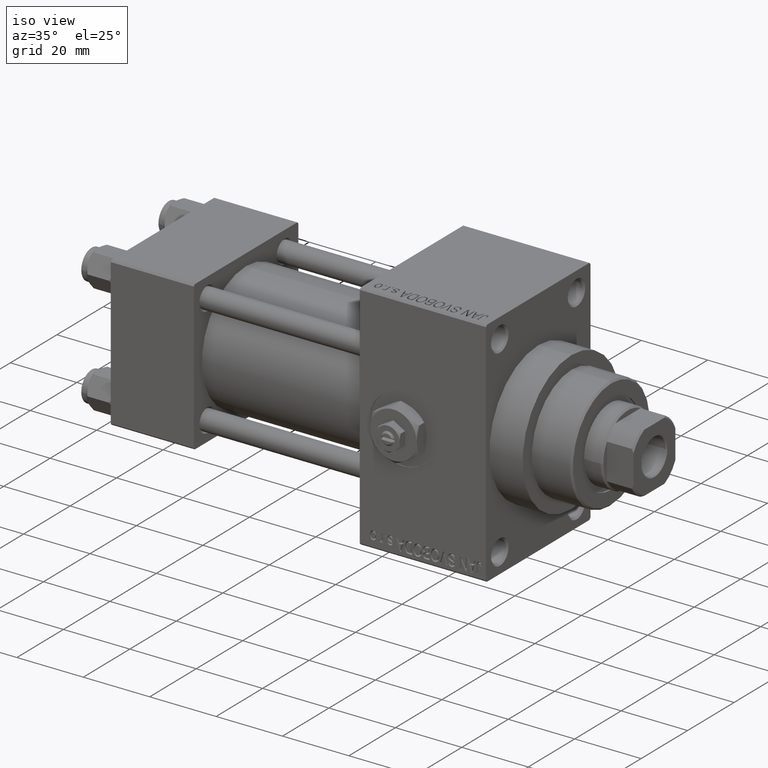
[diagram: clean part render]
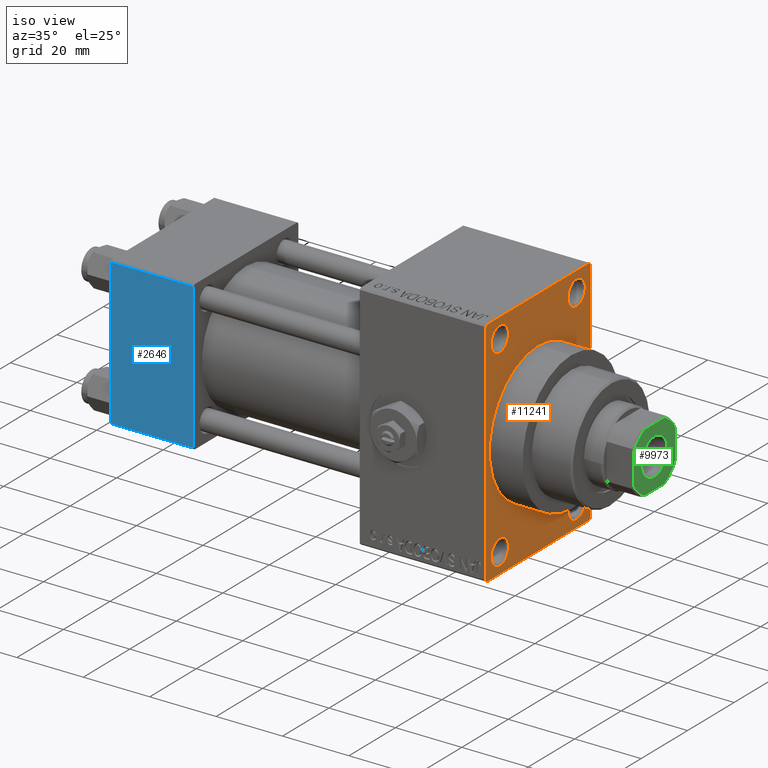
[diagram: same view with three faces highlighted in distinct colors, each labeled with its STEP entity id]
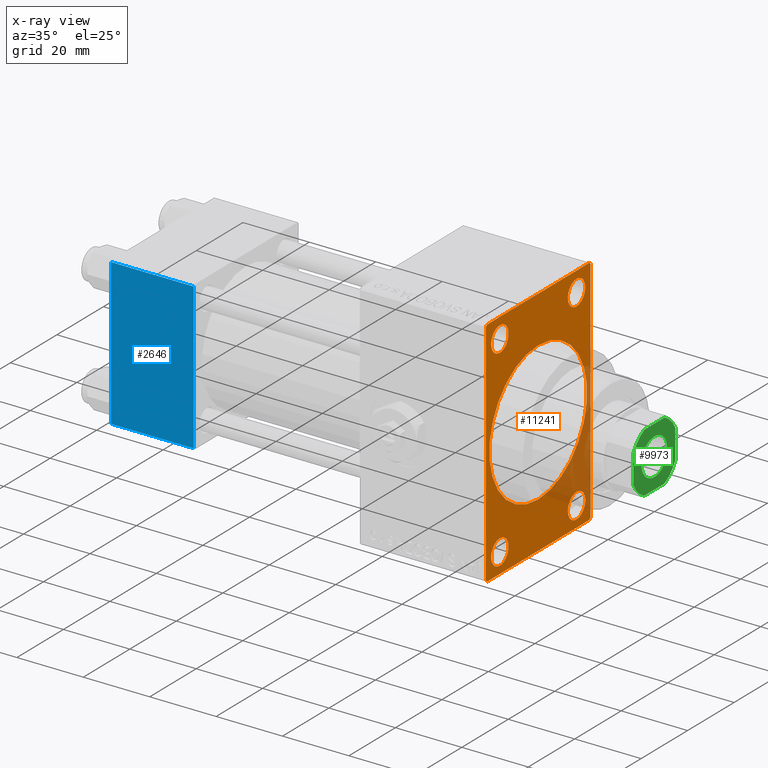
[diagram: x-ray of the same camera — body ghosted, the three highlighted faces saturated]
A machine part, iso view with three faces highlighted in distinct colors.
The next image is the same camera in x-ray (body ghosted, the three faces saturated) — at least one of them is partly hidden behind the body in this view.
Their STEP definitions:

[orange] entity #11241 — the highlighted planar face has unit normal (-1, 0, 0).
#111 = FACE_BOUND ( 'NONE', #27676, .T. ) ;
#350 = LINE ( 'NONE', #4540, #17916 ) ;
#731 = CARTESIAN_POINT ( 'NONE',  ( 113.0000000000000142, 21.99999999999999645, 35.00000000000000000 ) ) ;
#841 = CIRCLE ( 'NONE', #7157, 3.750000000000072831 ) ;
#1044 = CARTESIAN_POINT ( 'NONE',  ( 113.0000000000000142, 2.571758278209441661E-15, -21.00000000000000000 ) ) ;
#1515 = CIRCLE ( 'NONE', #22782, 3.750000000000076383 ) ;
#1830 = EDGE_CURVE ( 'NONE', #15247, #42795, #30172, .T. ) ;
#1863 = EDGE_CURVE ( 'NONE', #19307, #16703, #40389, .T. ) ;
#2009 = ORIENTED_EDGE ( 'NONE', *, *, #43191, .F. ) ;
#2532 = EDGE_LOOP ( 'NONE', ( #15069, #25843 ) ) ;
#2663 = CIRCLE ( 'NONE', #29483, 3.750000000000076383 ) ;
#2937 = EDGE_LOOP ( 'NONE', ( #11851, #37010, #37920, #43205, #41903, #37505, #27142, #4091 ) ) ;
#2986 = CARTESIAN_POINT ( 'NONE',  ( 113.0000000000000142, -16.50000000000000000, -28.99999999999999289 ) ) ;
#3069 = DIRECTION ( 'NONE',  ( 0.000000000000000000, 0.000000000000000000, 1.000000000000000000 ) ) ;
#3723 = EDGE_CURVE ( 'NONE', #18837, #29678, #25521, .T. ) ;
#3910 = DIRECTION ( 'NONE',  ( -1.000000000000000000, -0.000000000000000000, -0.000000000000000000 ) ) ;
#4055 = CIRCLE ( 'NONE', #48169, 3.750000000000069278 ) ;
#4091 = ORIENTED_EDGE ( 'NONE', *, *, #23575, .T. ) ;
#4540 = CARTESIAN_POINT ( 'NONE',  ( 113.0000000000000142, -22.50000000000000355, 35.00000000000000000 ) ) ;
#4783 = LINE ( 'NONE', #11959, #11440 ) ;
#5628 = VECTOR ( 'NONE', #10856, 1000.000000000000114 ) ;
#5907 = DIRECTION ( 'NONE',  ( 0.000000000000000000, 0.000000000000000000, -1.000000000000000000 ) ) ;
#5928 = EDGE_CURVE ( 'NONE', #39356, #47126, #4783, .T. ) ;
#6081 = AXIS2_PLACEMENT_3D ( 'NONE', #37622, #29984, #19614 ) ;
#6164 = DIRECTION ( 'NONE',  ( 0.000000000000000000, -0.7071067811865474617, 0.7071067811865474617 ) ) ;
#6750 = CARTESIAN_POINT ( 'NONE',  ( 113.0000000000000142, 16.50000000000000000, -32.75000000000007105 ) ) ;
#6920 = CARTESIAN_POINT ( 'NONE',  ( 113.0000000000000142, 16.50000000000000000, -28.99999999999999289 ) ) ;
#6928 = DIRECTION ( 'NONE',  ( 0.000000000000000000, 0.000000000000000000, 1.000000000000000000 ) ) ;
#6929 = DIRECTION ( 'NONE',  ( -1.000000000000000000, -0.000000000000000000, -0.000000000000000000 ) ) ;
#7157 = AXIS2_PLACEMENT_3D ( 'NONE', #46805, #9094, #38690 ) ;
#7222 = AXIS2_PLACEMENT_3D ( 'NONE', #44544, #10769, #14973 ) ;
#7718 = VERTEX_POINT ( 'NONE', #43502 ) ;
#7963 = CARTESIAN_POINT ( 'NONE',  ( 113.0000000000000142, -22.50000000000000355, -34.49999999999997158 ) ) ;
#8005 = FACE_BOUND ( 'NONE', #2532, .T. ) ;
#8899 = AXIS2_PLACEMENT_3D ( 'NONE', #47627, #28910, #6928 ) ;
#9094 = DIRECTION ( 'NONE',  ( -1.000000000000000000, -0.000000000000000000, -0.000000000000000000 ) ) ;
#9309 = CIRCLE ( 'NONE', #43053, 3.750000000000076383 ) ;
#9596 = DIRECTION ( 'NONE',  ( 0.000000000000000000, 0.000000000000000000, 1.000000000000000000 ) ) ;
#9903 = DIRECTION ( 'NONE',  ( -1.000000000000000000, -0.000000000000000000, -0.000000000000000000 ) ) ;
#10769 = DIRECTION ( 'NONE',  ( 1.000000000000000000, 0.000000000000000000, 0.000000000000000000 ) ) ;
#10856 = DIRECTION ( 'NONE',  ( -0.000000000000000000, 0.7071067811865474617, 0.7071067811865474617 ) ) ;
#10870 = ORIENTED_EDGE ( 'NONE', *, *, #28246, .F. ) ;
#11199 = EDGE_CURVE ( 'NONE', #47234, #39356, #350, .T. ) ;
#11241 = ADVANCED_FACE ( 'NONE', ( #8005, #22838, #12208, #34408, #111, #22596 ), #30955, .F. ) ;
#11440 = VECTOR ( 'NONE', #27005, 999.9999999999998863 ) ;
#11479 = DIRECTION ( 'NONE',  ( 0.000000000000000000, 0.000000000000000000, -1.000000000000000000 ) ) ;
#11701 = CARTESIAN_POINT ( 'NONE',  ( 113.0000000000000142, 16.50000000000000000, 25.24999999999993250 ) ) ;
#11851 = ORIENTED_EDGE ( 'NONE', *, *, #11199, .T. ) ;
#11959 = CARTESIAN_POINT ( 'NONE',  ( 113.0000000000000142, -21.99999999999998934, -35.00000000000000000 ) ) ;
#12208 = FACE_BOUND ( 'NONE', #40215, .T. ) ;
#13118 = EDGE_LOOP ( 'NONE', ( #46519, #17172 ) ) ;
#14788 = CARTESIAN_POINT ( 'NONE',  ( 113.0000000000000142, -16.50000000000000000, 32.75000000000007816 ) ) ;
#14973 = DIRECTION ( 'NONE',  ( 0.000000000000000000, 0.000000000000000000, -1.000000000000000000 ) ) ;
#15069 = ORIENTED_EDGE ( 'NONE', *, *, #27172, .T. ) ;
#15247 = VERTEX_POINT ( 'NONE', #6750 ) ;
#15593 = CARTESIAN_POINT ( 'NONE',  ( 113.0000000000000142, -16.50000000000000000, 29.00000000000000711 ) ) ;
#15700 = EDGE_CURVE ( 'NONE', #17176, #42998, #46871, .T. ) ;
#16603 = CARTESIAN_POINT ( 'NONE',  ( 113.0000000000000142, 21.99999999999999645, -35.00000000000000000 ) ) ;
#16703 = VERTEX_POINT ( 'NONE', #47849 ) ;
#17172 = ORIENTED_EDGE ( 'NONE', *, *, #3723, .T. ) ;
#17176 = VERTEX_POINT ( 'NONE', #25436 ) ;
#17314 = VECTOR ( 'NONE', #44388, 1000.000000000000114 ) ;
#17333 = VERTEX_POINT ( 'NONE', #19749 ) ;
#17600 = CARTESIAN_POINT ( 'NONE',  ( 113.0000000000000142, 16.50000000000000000, -25.24999999999992184 ) ) ;
#17839 = VERTEX_POINT ( 'NONE', #16603 ) ;
#17916 = VECTOR ( 'NONE', #11479, 1000.000000000000000 ) ;
#18712 = CARTESIAN_POINT ( 'NONE',  ( 113.0000000000000142, 0.000000000000000000, 0.000000000000000000 ) ) ;
#18837 = VERTEX_POINT ( 'NONE', #33338 ) ;
#18951 = EDGE_CURVE ( 'NONE', #7718, #17333, #1515, .T. ) ;
#19307 = VERTEX_POINT ( 'NONE', #14788 ) ;
#19614 = DIRECTION ( 'NONE',  ( -0.000000000000000000, 0.000000000000000000, 1.000000000000000000 ) ) ;
#19749 = CARTESIAN_POINT ( 'NONE',  ( 113.0000000000000142, -16.50000000000000000, -32.75000000000007105 ) ) ;
#20451 = CARTESIAN_POINT ( 'NONE',  ( 113.0000000000000142, -21.99999999999997513, -35.00000000000000000 ) ) ;
#20680 = ORIENTED_EDGE ( 'NONE', *, *, #37083, .T. ) ;
#21976 = LINE ( 'NONE', #33309, #48521 ) ;
#22596 = FACE_OUTER_BOUND ( 'NONE', #2937, .T. ) ;
#22782 = AXIS2_PLACEMENT_3D ( 'NONE', #2986, #6929, #41216 ) ;
#22838 = FACE_BOUND ( 'NONE', #38025, .T. ) ;
#23575 = EDGE_CURVE ( 'NONE', #32280, #47234, #33805, .T. ) ;
#24344 = ORIENTED_EDGE ( 'NONE', *, *, #46594, .T. ) ;
#24692 = CARTESIAN_POINT ( 'NONE',  ( 113.0000000000000142, 22.49999999999999645, 35.00000000000000000 ) ) ;
#24971 = DIRECTION ( 'NONE',  ( 0.000000000000000000, 0.000000000000000000, 1.000000000000000000 ) ) ;
#25436 = CARTESIAN_POINT ( 'NONE',  ( 113.0000000000000142, 22.49999999999999645, 34.50000000000000000 ) ) ;
#25521 = CIRCLE ( 'NONE', #33399, 3.750000000000072831 ) ;
#25843 = ORIENTED_EDGE ( 'NONE', *, *, #1863, .T. ) ;
#26637 = EDGE_CURVE ( 'NONE', #29678, #18837, #841, .T. ) ;
#26832 = DIRECTION ( 'NONE',  ( 0.000000000000000000, -1.000000000000000000, 0.000000000000000000 ) ) ;
#27005 = DIRECTION ( 'NONE',  ( 0.000000000000000000, 0.7071067811865376918, -0.7071067811865574537 ) ) ;
#27142 = ORIENTED_EDGE ( 'NONE', *, *, #48209, .T. ) ;
#27172 = EDGE_CURVE ( 'NONE', #16703, #19307, #4055, .T. ) ;
#27417 = EDGE_CURVE ( 'NONE', #17839, #42998, #37733, .T. ) ;
#27676 = EDGE_LOOP ( 'NONE', ( #10870, #2009 ) ) ;
#28111 = AXIS2_PLACEMENT_3D ( 'NONE', #18712, #33759, #34239 ) ;
#28246 = EDGE_CURVE ( 'NONE', #43981, #40184, #36384, .T. ) ;
#28349 = CARTESIAN_POINT ( 'NONE',  ( 113.0000000000000142, -16.50000000000000000, -28.99999999999999289 ) ) ;
#28910 = DIRECTION ( 'NONE',  ( -1.000000000000000000, -0.000000000000000000, -0.000000000000000000 ) ) ;
#29483 = AXIS2_PLACEMENT_3D ( 'NONE', #6920, #9903, #24971 ) ;
#29678 = VERTEX_POINT ( 'NONE', #11701 ) ;
#29984 = DIRECTION ( 'NONE',  ( -1.000000000000000000, 0.000000000000000000, -0.000000000000000000 ) ) ;
#30172 = CIRCLE ( 'NONE', #8899, 3.750000000000076383 ) ;
#30802 = CARTESIAN_POINT ( 'NONE',  ( 113.0000000000000142, -21.99999999999998934, 35.00000000000000000 ) ) ;
#30955 = PLANE ( 'NONE',  #6081 ) ;
#31437 = EDGE_CURVE ( 'NONE', #17839, #47126, #37149, .T. ) ;
#31755 = AXIS2_PLACEMENT_3D ( 'NONE', #41461, #33095, #41215 ) ;
#32280 = VERTEX_POINT ( 'NONE', #30802 ) ;
#32291 = DIRECTION ( 'NONE',  ( -1.000000000000000000, -0.000000000000000000, -0.000000000000000000 ) ) ;
#32822 = CIRCLE ( 'NONE', #28111, 21.00000000000000000 ) ;
#33095 = DIRECTION ( 'NONE',  ( -1.000000000000000000, -0.000000000000000000, -0.000000000000000000 ) ) ;
#33309 = CARTESIAN_POINT ( 'NONE',  ( 113.0000000000000142, 21.99999999999999645, 35.00000000000000000 ) ) ;
#33338 = CARTESIAN_POINT ( 'NONE',  ( 113.0000000000000142, 16.50000000000000000, 32.75000000000007816 ) ) ;
#33399 = AXIS2_PLACEMENT_3D ( 'NONE', #37713, #3910, #40670 ) ;
#33750 = LINE ( 'NONE', #37912, #46230 ) ;
#33759 = DIRECTION ( 'NONE',  ( 1.000000000000000000, 0.000000000000000000, 0.000000000000000000 ) ) ;
#33805 = LINE ( 'NONE', #48336, #17314 ) ;
#34239 = DIRECTION ( 'NONE',  ( 0.000000000000000000, 0.000000000000000000, -1.000000000000000000 ) ) ;
#34341 = DIRECTION ( 'NONE',  ( -1.000000000000000000, -0.000000000000000000, -0.000000000000000000 ) ) ;
#34408 = FACE_BOUND ( 'NONE', #13118, .T. ) ;
#34605 = CARTESIAN_POINT ( 'NONE',  ( 113.0000000000000142, 22.49999999999999645, -34.50000000000000000 ) ) ;
#35046 = VERTEX_POINT ( 'NONE', #731 ) ;
#36384 = CIRCLE ( 'NONE', #7222, 21.00000000000000000 ) ;
#37010 = ORIENTED_EDGE ( 'NONE', *, *, #5928, .T. ) ;
#37083 = EDGE_CURVE ( 'NONE', #42795, #15247, #2663, .T. ) ;
#37149 = LINE ( 'NONE', #48489, #37298 ) ;
#37237 = CARTESIAN_POINT ( 'NONE',  ( 113.0000000000000142, 22.49999999999999645, -34.50000000000000000 ) ) ;
#37298 = VECTOR ( 'NONE', #41091, 1000.000000000000000 ) ;
#37505 = ORIENTED_EDGE ( 'NONE', *, *, #41967, .T. ) ;
#37622 = CARTESIAN_POINT ( 'NONE',  ( 113.0000000000000142, 0.000000000000000000, 0.000000000000000000 ) ) ;
#37713 = CARTESIAN_POINT ( 'NONE',  ( 113.0000000000000142, 16.50000000000000000, 29.00000000000000355 ) ) ;
#37733 = LINE ( 'NONE', #37237, #5628 ) ;
#37912 = CARTESIAN_POINT ( 'NONE',  ( 113.0000000000000142, 22.49999999999999645, 35.00000000000000000 ) ) ;
#37920 = ORIENTED_EDGE ( 'NONE', *, *, #31437, .F. ) ;
#38025 = EDGE_LOOP ( 'NONE', ( #24344, #48018 ) ) ;
#38690 = DIRECTION ( 'NONE',  ( 0.000000000000000000, 0.000000000000000000, 1.000000000000000000 ) ) ;
#39356 = VERTEX_POINT ( 'NONE', #7963 ) ;
#40184 = VERTEX_POINT ( 'NONE', #1044 ) ;
#40215 = EDGE_LOOP ( 'NONE', ( #40445, #20680 ) ) ;
#40389 = CIRCLE ( 'NONE', #31755, 3.750000000000069278 ) ;
#40445 = ORIENTED_EDGE ( 'NONE', *, *, #1830, .T. ) ;
#40670 = DIRECTION ( 'NONE',  ( 0.000000000000000000, 0.000000000000000000, 1.000000000000000000 ) ) ;
#41091 = DIRECTION ( 'NONE',  ( 0.000000000000000000, -1.000000000000000000, 0.000000000000000000 ) ) ;
#41215 = DIRECTION ( 'NONE',  ( 0.000000000000000000, 0.000000000000000000, 1.000000000000000000 ) ) ;
#41216 = DIRECTION ( 'NONE',  ( 0.000000000000000000, 0.000000000000000000, 1.000000000000000000 ) ) ;
#41461 = CARTESIAN_POINT ( 'NONE',  ( 113.0000000000000142, -16.50000000000000000, 29.00000000000000711 ) ) ;
#41903 = ORIENTED_EDGE ( 'NONE', *, *, #15700, .F. ) ;
#41967 = EDGE_CURVE ( 'NONE', #17176, #35046, #21976, .T. ) ;
#42795 = VERTEX_POINT ( 'NONE', #17600 ) ;
#42953 = CARTESIAN_POINT ( 'NONE',  ( 113.0000000000000142, 0.000000000000000000, 21.00000000000000000 ) ) ;
#42998 = VERTEX_POINT ( 'NONE', #34605 ) ;
#43053 = AXIS2_PLACEMENT_3D ( 'NONE', #28349, #32291, #9596 ) ;
#43191 = EDGE_CURVE ( 'NONE', #40184, #43981, #32822, .T. ) ;
#43205 = ORIENTED_EDGE ( 'NONE', *, *, #27417, .T. ) ;
#43502 = CARTESIAN_POINT ( 'NONE',  ( 113.0000000000000142, -16.50000000000000000, -25.24999999999992184 ) ) ;
#43836 = CARTESIAN_POINT ( 'NONE',  ( 113.0000000000000142, -22.50000000000000355, 34.50000000000000000 ) ) ;
#43981 = VERTEX_POINT ( 'NONE', #42953 ) ;
#44388 = DIRECTION ( 'NONE',  ( -0.000000000000000000, -0.7071067811865474617, -0.7071067811865474617 ) ) ;
#44544 = CARTESIAN_POINT ( 'NONE',  ( 113.0000000000000142, 0.000000000000000000, 0.000000000000000000 ) ) ;
#46230 = VECTOR ( 'NONE', #26832, 1000.000000000000000 ) ;
#46519 = ORIENTED_EDGE ( 'NONE', *, *, #26637, .T. ) ;
#46594 = EDGE_CURVE ( 'NONE', #17333, #7718, #9309, .T. ) ;
#46805 = CARTESIAN_POINT ( 'NONE',  ( 113.0000000000000142, 16.50000000000000000, 29.00000000000000355 ) ) ;
#46871 = LINE ( 'NONE', #24692, #48669 ) ;
#47126 = VERTEX_POINT ( 'NONE', #20451 ) ;
#47234 = VERTEX_POINT ( 'NONE', #43836 ) ;
#47627 = CARTESIAN_POINT ( 'NONE',  ( 113.0000000000000142, 16.50000000000000000, -28.99999999999999289 ) ) ;
#47849 = CARTESIAN_POINT ( 'NONE',  ( 113.0000000000000142, -16.50000000000000000, 25.24999999999993960 ) ) ;
#48018 = ORIENTED_EDGE ( 'NONE', *, *, #18951, .T. ) ;
#48169 = AXIS2_PLACEMENT_3D ( 'NONE', #15593, #34341, #3069 ) ;
#48209 = EDGE_CURVE ( 'NONE', #35046, #32280, #33750, .T. ) ;
#48336 = CARTESIAN_POINT ( 'NONE',  ( 113.0000000000000142, -22.50000000000000355, 34.50000000000000000 ) ) ;
#48489 = CARTESIAN_POINT ( 'NONE',  ( 113.0000000000000142, 22.49999999999999645, -35.00000000000000000 ) ) ;
#48521 = VECTOR ( 'NONE', #6164, 1000.000000000000114 ) ;
#48669 = VECTOR ( 'NONE', #5907, 1000.000000000000000 ) ;

[blue] entity #2646 — the highlighted planar face has unit normal (0, 1, 0).
#207 = VERTEX_POINT ( 'NONE', #41079 ) ;
#2197 = EDGE_LOOP ( 'NONE', ( #2705, #48457, #14991, #9513 ) ) ;
#2646 = ADVANCED_FACE ( 'NONE', ( #41873 ), #12040, .F. ) ;
#2705 = ORIENTED_EDGE ( 'NONE', *, *, #29580, .T. ) ;
#3454 = VECTOR ( 'NONE', #32732, 1000.000000000000000 ) ;
#3953 = EDGE_CURVE ( 'NONE', #7276, #30971, #47032, .T. ) ;
#7276 = VERTEX_POINT ( 'NONE', #15316 ) ;
#8335 = CARTESIAN_POINT ( 'NONE',  ( 25.00000000000000000, -22.50000000000000000, 22.50000000000000000 ) ) ;
#9513 = ORIENTED_EDGE ( 'NONE', *, *, #28179, .T. ) ;
#12040 = PLANE ( 'NONE',  #45954 ) ;
#12754 = DIRECTION ( 'NONE',  ( 1.000000000000000000, 0.000000000000000000, 0.000000000000000000 ) ) ;
#12772 = LINE ( 'NONE', #35229, #25379 ) ;
#13940 = LINE ( 'NONE', #48188, #38781 ) ;
#14991 = ORIENTED_EDGE ( 'NONE', *, *, #3953, .F. ) ;
#15316 = CARTESIAN_POINT ( 'NONE',  ( 25.00000000000000000, -22.50000000000000000, 22.00000000000000000 ) ) ;
#19698 = DIRECTION ( 'NONE',  ( -0.000000000000000000, 1.000000000000000000, 0.000000000000000000 ) ) ;
#21644 = CARTESIAN_POINT ( 'NONE',  ( 25.00000000000000000, -22.50000000000000000, 22.50000000000000000 ) ) ;
#25022 = EDGE_CURVE ( 'NONE', #207, #30971, #34717, .T. ) ;
#25379 = VECTOR ( 'NONE', #43819, 1000.000000000000000 ) ;
#25528 = DIRECTION ( 'NONE',  ( 0.000000000000000000, 0.000000000000000000, -1.000000000000000000 ) ) ;
#27332 = DIRECTION ( 'NONE',  ( 0.000000000000000000, -0.000000000000000000, 1.000000000000000000 ) ) ;
#28179 = EDGE_CURVE ( 'NONE', #7276, #31499, #12772, .T. ) ;
#29580 = EDGE_CURVE ( 'NONE', #31499, #207, #13940, .T. ) ;
#30971 = VERTEX_POINT ( 'NONE', #48552 ) ;
#31499 = VERTEX_POINT ( 'NONE', #42299 ) ;
#32732 = DIRECTION ( 'NONE',  ( 0.000000000000000000, 0.000000000000000000, -1.000000000000000000 ) ) ;
#34717 = LINE ( 'NONE', #35208, #40992 ) ;
#35208 = CARTESIAN_POINT ( 'NONE',  ( 25.00000000000000000, -22.50000000000000000, -21.99999999999998579 ) ) ;
#35229 = CARTESIAN_POINT ( 'NONE',  ( 25.00000000000000000, -22.50000000000000000, 22.00000000000000000 ) ) ;
#38781 = VECTOR ( 'NONE', #25528, 1000.000000000000000 ) ;
#40992 = VECTOR ( 'NONE', #12754, 1000.000000000000000 ) ;
#41079 = CARTESIAN_POINT ( 'NONE',  ( 0.000000000000000000, -22.50000000000000000, -21.99999999999997158 ) ) ;
#41873 = FACE_OUTER_BOUND ( 'NONE', #2197, .T. ) ;
#42299 = CARTESIAN_POINT ( 'NONE',  ( 0.000000000000000000, -22.50000000000000000, 22.00000000000000000 ) ) ;
#43819 = DIRECTION ( 'NONE',  ( -1.000000000000000000, 0.000000000000000000, 0.000000000000000000 ) ) ;
#45954 = AXIS2_PLACEMENT_3D ( 'NONE', #8335, #19698, #27332 ) ;
#47032 = LINE ( 'NONE', #21644, #3454 ) ;
#48188 = CARTESIAN_POINT ( 'NONE',  ( 0.000000000000000000, -22.50000000000000000, 22.50000000000000000 ) ) ;
#48457 = ORIENTED_EDGE ( 'NONE', *, *, #25022, .T. ) ;
#48552 = CARTESIAN_POINT ( 'NONE',  ( 25.00000000000000000, -22.50000000000000000, -21.99999999999997158 ) ) ;

[green] entity #9973 — the highlighted planar face has unit normal (1, 0, 0).
#311 = LINE ( 'NONE', #41025, #29592 ) ;
#1750 = AXIS2_PLACEMENT_3D ( 'NONE', #18352, #33648, #29206 ) ;
#2395 = DIRECTION ( 'NONE',  ( 1.000000000000000000, 0.000000000000000000, 0.000000000000000000 ) ) ;
#2449 = FACE_OUTER_BOUND ( 'NONE', #48571, .T. ) ;
#2732 = CARTESIAN_POINT ( 'NONE',  ( -5.550000000000013145, 6.796789735267826558E-16, 123.0000000000000000 ) ) ;
#3481 = DIRECTION ( 'NONE',  ( 1.000000000000000000, 0.000000000000000000, 0.000000000000000000 ) ) ;
#4000 = VERTEX_POINT ( 'NONE', #6810 ) ;
#4122 = ORIENTED_EDGE ( 'NONE', *, *, #36972, .T. ) ;
#4980 = VERTEX_POINT ( 'NONE', #11994 ) ;
#5104 = LINE ( 'NONE', #16487, #33834 ) ;
#6401 = AXIS2_PLACEMENT_3D ( 'NONE', #39906, #36211, #2395 ) ;
#6810 = CARTESIAN_POINT ( 'NONE',  ( 8.999999999999998224, -4.358898943540672200, 123.0000000000000000 ) ) ;
#7003 = CARTESIAN_POINT ( 'NONE',  ( 0.000000000000000000, 0.000000000000000000, 123.0000000000000000 ) ) ;
#7847 = ORIENTED_EDGE ( 'NONE', *, *, #14425, .T. ) ;
#8184 = CARTESIAN_POINT ( 'NONE',  ( -9.000000000000003553, -4.358898943540665094, 123.0000000000000000 ) ) ;
#8660 = VECTOR ( 'NONE', #17113, 1000.000000000000000 ) ;
#9220 = AXIS2_PLACEMENT_3D ( 'NONE', #39470, #43406, #21469 ) ;
#9238 = AXIS2_PLACEMENT_3D ( 'NONE', #17898, #39594, #35669 ) ;
#9920 = ORIENTED_EDGE ( 'NONE', *, *, #47585, .T. ) ;
#9973 = ADVANCED_FACE ( 'NONE', ( #24224, #2449 ), #24457, .T. ) ;
#10174 = CARTESIAN_POINT ( 'NONE',  ( -9.000000000000003553, 8.999999999999998224, 123.0000000000000000 ) ) ;
#11191 = CARTESIAN_POINT ( 'NONE',  ( -4.358898943540671311, 8.999999999999998224, 123.0000000000000000 ) ) ;
#11994 = CARTESIAN_POINT ( 'NONE',  ( 4.358898943540597593, 8.999999999999998224, 123.0000000000000000 ) ) ;
#14425 = EDGE_CURVE ( 'NONE', #17700, #40245, #24997, .T. ) ;
#15893 = VERTEX_POINT ( 'NONE', #45605 ) ;
#16487 = CARTESIAN_POINT ( 'NONE',  ( -9.000000000000003553, 8.999999999999998224, 123.0000000000000000 ) ) ;
#17113 = DIRECTION ( 'NONE',  ( -1.000000000000000000, -0.000000000000000000, -0.000000000000000000 ) ) ;
#17509 = CIRCLE ( 'NONE', #23839, 9.999999999999998224 ) ;
#17700 = VERTEX_POINT ( 'NONE', #44227 ) ;
#17898 = CARTESIAN_POINT ( 'NONE',  ( 0.000000000000000000, 0.000000000000000000, 123.0000000000000000 ) ) ;
#18352 = CARTESIAN_POINT ( 'NONE',  ( 0.000000000000000000, 0.000000000000000000, 123.0000000000000000 ) ) ;
#18381 = EDGE_CURVE ( 'NONE', #15893, #27163, #5104, .T. ) ;
#18857 = CARTESIAN_POINT ( 'NONE',  ( -9.000000000000001776, -9.000000000000001776, 123.0000000000000000 ) ) ;
#19183 = ORIENTED_EDGE ( 'NONE', *, *, #32738, .T. ) ;
#21469 = DIRECTION ( 'NONE',  ( 1.000000000000000000, 0.000000000000000000, 0.000000000000000000 ) ) ;
#22072 = DIRECTION ( 'NONE',  ( -0.000000000000000000, 0.000000000000000000, 1.000000000000000000 ) ) ;
#23290 = EDGE_CURVE ( 'NONE', #4980, #31835, #28934, .T. ) ;
#23828 = CARTESIAN_POINT ( 'NONE',  ( 4.358898943540667759, -9.000000000000001776, 123.0000000000000000 ) ) ;
#23839 = AXIS2_PLACEMENT_3D ( 'NONE', #7003, #22072, #37096 ) ;
#24214 = VERTEX_POINT ( 'NONE', #47972 ) ;
#24224 = FACE_BOUND ( 'NONE', #42266, .T. ) ;
#24457 = PLANE ( 'NONE',  #9220 ) ;
#24997 = CIRCLE ( 'NONE', #47814, 5.550000000000013145 ) ;
#25956 = DIRECTION ( 'NONE',  ( 0.000000000000000000, -0.000000000000000000, -1.000000000000000000 ) ) ;
#26299 = VECTOR ( 'NONE', #33901, 1000.000000000000000 ) ;
#26370 = ORIENTED_EDGE ( 'NONE', *, *, #18381, .T. ) ;
#26584 = ORIENTED_EDGE ( 'NONE', *, *, #23290, .T. ) ;
#27163 = VERTEX_POINT ( 'NONE', #8184 ) ;
#27623 = EDGE_CURVE ( 'NONE', #40245, #17700, #45803, .T. ) ;
#28934 = LINE ( 'NONE', #10174, #8660 ) ;
#29206 = DIRECTION ( 'NONE',  ( 1.000000000000000000, 0.000000000000000000, 0.000000000000000000 ) ) ;
#29592 = VECTOR ( 'NONE', #33896, 1000.000000000000000 ) ;
#29621 = EDGE_CURVE ( 'NONE', #27163, #33376, #17509, .T. ) ;
#30360 = ORIENTED_EDGE ( 'NONE', *, *, #40085, .T. ) ;
#30730 = CARTESIAN_POINT ( 'NONE',  ( 0.000000000000000000, 0.000000000000000000, 123.0000000000000000 ) ) ;
#31835 = VERTEX_POINT ( 'NONE', #11191 ) ;
#31849 = AXIS2_PLACEMENT_3D ( 'NONE', #30730, #41807, #34908 ) ;
#31861 = EDGE_CURVE ( 'NONE', #24214, #4980, #46762, .T. ) ;
#32738 = EDGE_CURVE ( 'NONE', #33376, #35316, #44977, .T. ) ;
#33376 = VERTEX_POINT ( 'NONE', #40310 ) ;
#33648 = DIRECTION ( 'NONE',  ( -0.000000000000000000, 0.000000000000000000, 1.000000000000000000 ) ) ;
#33834 = VECTOR ( 'NONE', #35705, 1000.000000000000000 ) ;
#33896 = DIRECTION ( 'NONE',  ( -1.927470528863119049E-16, 1.000000000000000000, -0.000000000000000000 ) ) ;
#33901 = DIRECTION ( 'NONE',  ( 1.000000000000000000, 0.000000000000000000, 0.000000000000000000 ) ) ;
#34213 = CIRCLE ( 'NONE', #31849, 9.999999999999996447 ) ;
#34908 = DIRECTION ( 'NONE',  ( 1.000000000000000000, 0.000000000000000000, 0.000000000000000000 ) ) ;
#35316 = VERTEX_POINT ( 'NONE', #23828 ) ;
#35669 = DIRECTION ( 'NONE',  ( 1.000000000000000000, 0.000000000000000000, 0.000000000000000000 ) ) ;
#35705 = DIRECTION ( 'NONE',  ( 9.637352644315595243E-17, -1.000000000000000000, 0.000000000000000000 ) ) ;
#36211 = DIRECTION ( 'NONE',  ( 0.000000000000000000, -0.000000000000000000, -1.000000000000000000 ) ) ;
#36972 = EDGE_CURVE ( 'NONE', #31835, #15893, #34213, .T. ) ;
#37096 = DIRECTION ( 'NONE',  ( 1.000000000000000000, 0.000000000000000000, 0.000000000000000000 ) ) ;
#37284 = CARTESIAN_POINT ( 'NONE',  ( 0.000000000000000000, 0.000000000000000000, 123.0000000000000000 ) ) ;
#38384 = CIRCLE ( 'NONE', #9238, 9.999999999999998224 ) ;
#39470 = CARTESIAN_POINT ( 'NONE',  ( 0.000000000000000000, 0.000000000000000000, 123.0000000000000000 ) ) ;
#39594 = DIRECTION ( 'NONE',  ( -0.000000000000000000, 0.000000000000000000, 1.000000000000000000 ) ) ;
#39906 = CARTESIAN_POINT ( 'NONE',  ( 0.000000000000000000, 0.000000000000000000, 123.0000000000000000 ) ) ;
#40085 = EDGE_CURVE ( 'NONE', #4000, #24214, #311, .T. ) ;
#40245 = VERTEX_POINT ( 'NONE', #2732 ) ;
#40310 = CARTESIAN_POINT ( 'NONE',  ( -4.358898943540667759, -9.000000000000001776, 123.0000000000000000 ) ) ;
#41025 = CARTESIAN_POINT ( 'NONE',  ( 8.999999999999996447, 8.999999999999998224, 123.0000000000000000 ) ) ;
#41807 = DIRECTION ( 'NONE',  ( -0.000000000000000000, 0.000000000000000000, 1.000000000000000000 ) ) ;
#42266 = EDGE_LOOP ( 'NONE', ( #7847, #48509 ) ) ;
#42888 = ORIENTED_EDGE ( 'NONE', *, *, #29621, .T. ) ;
#43406 = DIRECTION ( 'NONE',  ( -0.000000000000000000, 0.000000000000000000, 1.000000000000000000 ) ) ;
#44227 = CARTESIAN_POINT ( 'NONE',  ( 5.550000000000013145, 0.000000000000000000, 123.0000000000000000 ) ) ;
#44977 = LINE ( 'NONE', #18857, #26299 ) ;
#45605 = CARTESIAN_POINT ( 'NONE',  ( -9.000000000000003553, 4.358898943540662430, 123.0000000000000000 ) ) ;
#45714 = ORIENTED_EDGE ( 'NONE', *, *, #31861, .T. ) ;
#45803 = CIRCLE ( 'NONE', #6401, 5.550000000000013145 ) ;
#46762 = CIRCLE ( 'NONE', #1750, 9.999999999999966249 ) ;
#47585 = EDGE_CURVE ( 'NONE', #35316, #4000, #38384, .T. ) ;
#47814 = AXIS2_PLACEMENT_3D ( 'NONE', #37284, #25956, #3481 ) ;
#47972 = CARTESIAN_POINT ( 'NONE',  ( 8.999999999999998224, 4.358898943540600257, 123.0000000000000000 ) ) ;
#48509 = ORIENTED_EDGE ( 'NONE', *, *, #27623, .T. ) ;
#48571 = EDGE_LOOP ( 'NONE', ( #30360, #45714, #26584, #4122, #26370, #42888, #19183, #9920 ) ) ;